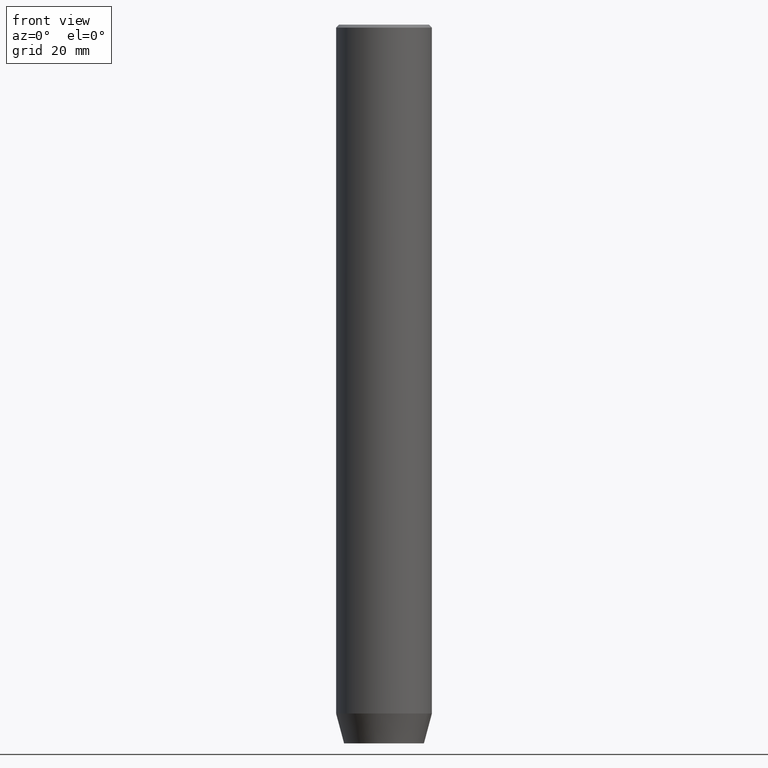
[diagram: clean part render]
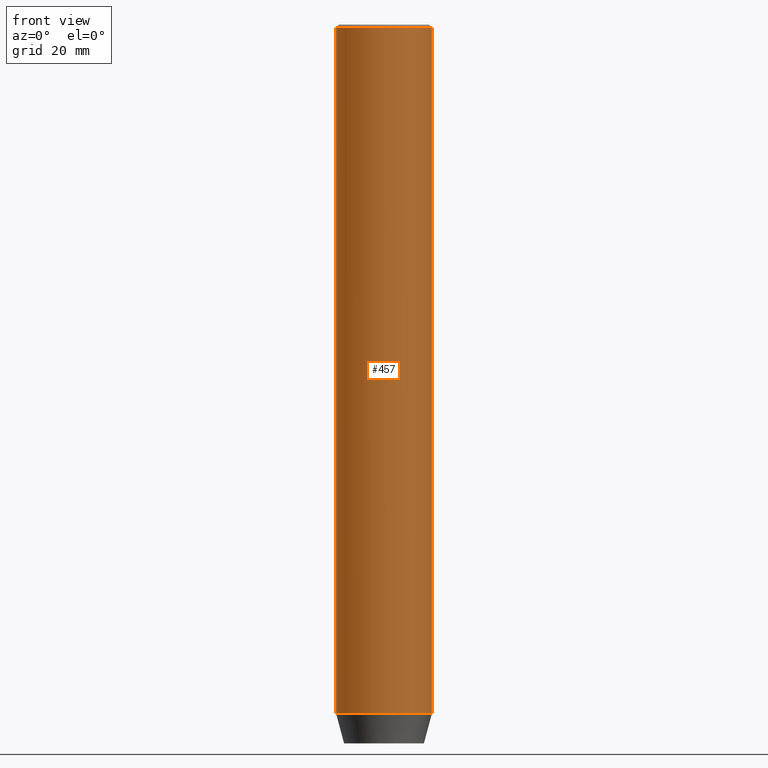
[diagram: same view with one face highlighted and labeled with its STEP entity id]
A machine part, front view. The second image highlights one B-rep face of the part: STEP entity #457.
In plain terms, the highlighted cylindrical surface (partial cylindrical patch) has radius 8 mm, axis along (-0, -0, 1).
Its self-contained STEP definition (entity closure, byte-faithful):
#15 = VERTEX_POINT ( 'NONE', #97 ) ;
#20 = ORIENTED_EDGE ( 'NONE', *, *, #446, .T. ) ;
#22 = LINE ( 'NONE', #279, #550 ) ;
#26 = DIRECTION ( 'NONE',  ( 1.000000000000000000, 0.000000000000000000, 0.000000000000000000 ) ) ;
#30 = VECTOR ( 'NONE', #487, 1000.000000000000000 ) ;
#38 = DIRECTION ( 'NONE',  ( 1.000000000000000000, 0.000000000000000000, 0.000000000000000000 ) ) ;
#67 = AXIS2_PLACEMENT_3D ( 'NONE', #423, #109, #26 ) ;
#71 = FACE_OUTER_BOUND ( 'NONE', #560, .T. ) ;
#86 = CIRCLE ( 'NONE', #154, 8.000000000000000000 ) ;
#97 = CARTESIAN_POINT ( 'NONE',  ( -8.000000000000000000, 9.797174393178825657E-16, -0.5000000000000213163 ) ) ;
#109 = DIRECTION ( 'NONE',  ( -0.000000000000000000, -0.000000000000000000, 1.000000000000000000 ) ) ;
#123 = DIRECTION ( 'NONE',  ( -0.000000000000000000, -0.000000000000000000, 1.000000000000000000 ) ) ;
#132 = CARTESIAN_POINT ( 'NONE',  ( -8.000000000000000000, 9.797174393178825657E-16, -114.9999999999999858 ) ) ;
#154 = AXIS2_PLACEMENT_3D ( 'NONE', #156, #568, #38 ) ;
#156 = CARTESIAN_POINT ( 'NONE',  ( 0.000000000000000000, 0.000000000000000000, -0.5000000000000213163 ) ) ;
#182 = ORIENTED_EDGE ( 'NONE', *, *, #467, .F. ) ;
#200 = LINE ( 'NONE', #436, #30 ) ;
#239 = CYLINDRICAL_SURFACE ( 'NONE', #67, 8.000000000000000000 ) ;
#268 = CIRCLE ( 'NONE', #308, 8.000000000000000000 ) ;
#279 = CARTESIAN_POINT ( 'NONE',  ( 8.000000000000000000, 0.000000000000000000, 0.000000000000000000 ) ) ;
#304 = DIRECTION ( 'NONE',  ( 1.000000000000000000, 0.000000000000000000, 0.000000000000000000 ) ) ;
#308 = AXIS2_PLACEMENT_3D ( 'NONE', #346, #123, #304 ) ;
#310 = ORIENTED_EDGE ( 'NONE', *, *, #502, .T. ) ;
#317 = VERTEX_POINT ( 'NONE', #132 ) ;
#339 = VERTEX_POINT ( 'NONE', #559 ) ;
#346 = CARTESIAN_POINT ( 'NONE',  ( 0.000000000000000000, 0.000000000000000000, -114.9999999999999858 ) ) ;
#389 = ORIENTED_EDGE ( 'NONE', *, *, #470, .T. ) ;
#394 = CARTESIAN_POINT ( 'NONE',  ( 8.000000000000000000, 0.000000000000000000, -114.9999999999999858 ) ) ;
#423 = CARTESIAN_POINT ( 'NONE',  ( 0.000000000000000000, 0.000000000000000000, 0.000000000000000000 ) ) ;
#436 = CARTESIAN_POINT ( 'NONE',  ( -8.000000000000000000, 9.797174393178825657E-16, 0.000000000000000000 ) ) ;
#446 = EDGE_CURVE ( 'NONE', #501, #339, #22, .T. ) ;
#457 = ADVANCED_FACE ( 'NONE', ( #71 ), #239, .T. ) ;
#467 = EDGE_CURVE ( 'NONE', #317, #15, #200, .T. ) ;
#470 = EDGE_CURVE ( 'NONE', #339, #15, #86, .T. ) ;
#487 = DIRECTION ( 'NONE',  ( -0.000000000000000000, -0.000000000000000000, 1.000000000000000000 ) ) ;
#501 = VERTEX_POINT ( 'NONE', #394 ) ;
#502 = EDGE_CURVE ( 'NONE', #317, #501, #268, .T. ) ;
#550 = VECTOR ( 'NONE', #562, 1000.000000000000000 ) ;
#559 = CARTESIAN_POINT ( 'NONE',  ( 8.000000000000000000, 0.000000000000000000, -0.5000000000000213163 ) ) ;
#560 = EDGE_LOOP ( 'NONE', ( #182, #310, #20, #389 ) ) ;
#562 = DIRECTION ( 'NONE',  ( -0.000000000000000000, -0.000000000000000000, 1.000000000000000000 ) ) ;
#568 = DIRECTION ( 'NONE',  ( 0.000000000000000000, 0.000000000000000000, -1.000000000000000000 ) ) ;